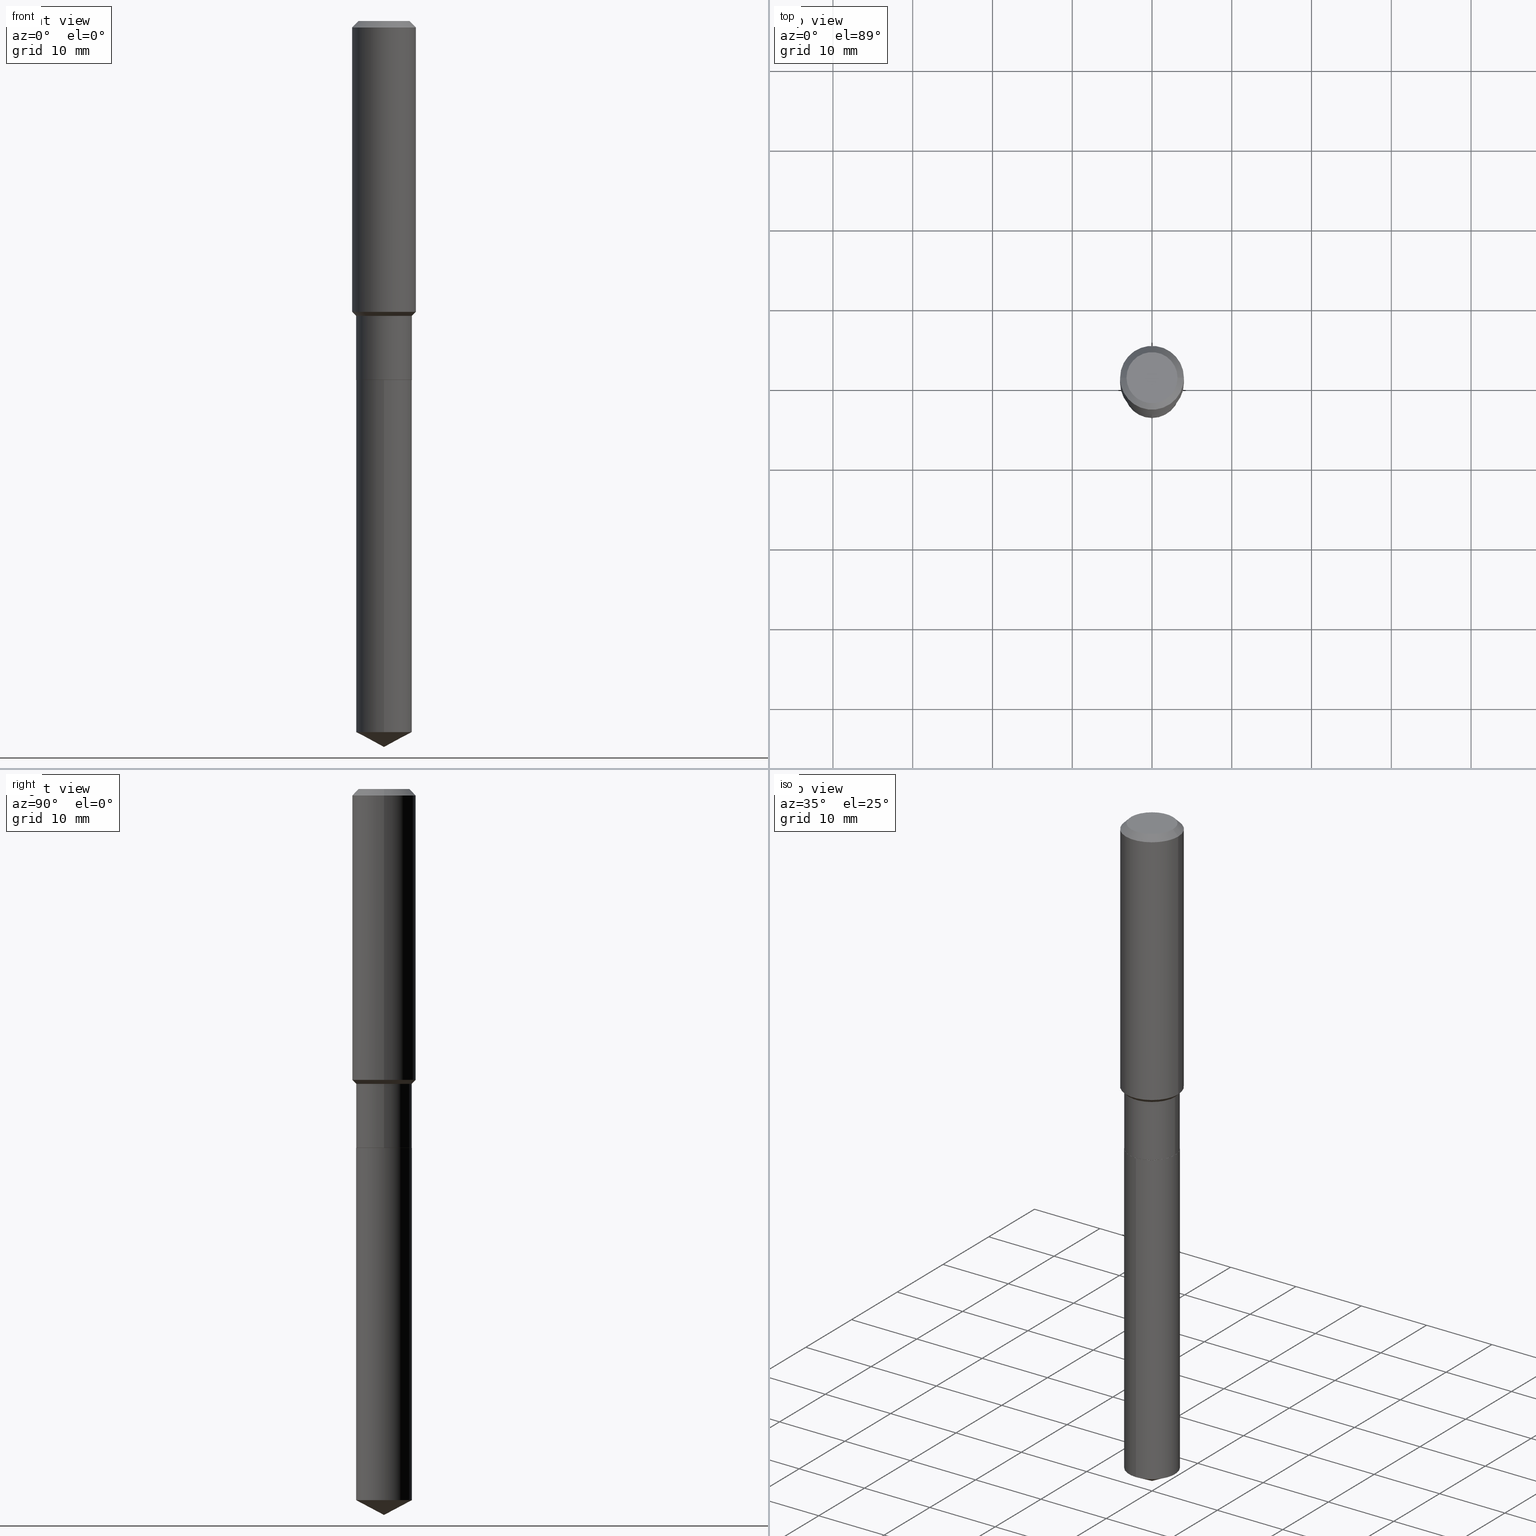
[diagram: canonical four-view strip — front | top / right | iso, engineering-drawing reading convention]
A machine part, canonical four-view strip (front | top / right | iso — engineering-drawing reading convention). The complete STEP part file that produces these views, byte-faithful:
ISO-10303-21;
HEADER;
FILE_DESCRIPTION (( 'STEP AP203' ),
    '1' );
FILE_NAME ('64840.STEP',
    '2024-04-24T19:09:38',
    ( '' ),
    ( '' ),
    'SwSTEP 2.0',
    'SolidWorks 2023',
    '' );
FILE_SCHEMA (( 'CONFIG_CONTROL_DESIGN' ));
ENDSEC;

DATA;
#1 = CONICAL_SURFACE ( 'NONE', #111, 0.1377999999999999781, 0.7853981633974513876 ) ;
#2 = ORIENTED_EDGE ( 'NONE', *, *, #119, .T. ) ;
#3 = CARTESIAN_POINT ( 'NONE',  ( -0.1260000000000000009, 9.348441284752484904E-16, 3.860086710906114178E-18 ) ) ;
#4 = CARTESIAN_POINT ( 'NONE',  ( -9.622522569850814911E-16, -0.1378000000000122460, -3.509430440317047761 ) ) ;
#5 = DESIGN_CONTEXT ( 'detailed design', #169, 'design' ) ;
#6 = VERTEX_POINT ( 'NONE', #266 ) ;
#7 = PRODUCT_RELATED_PRODUCT_CATEGORY ( 'detail', '', ( #329 ) ) ;
#8 = CARTESIAN_POINT ( 'NONE',  ( 4.332637083918206427E-29, -6.185857488028401081E-15, -1.771700000000000053 ) ) ;
#9 = AXIS2_PLACEMENT_3D ( 'NONE', #42, #201, #468 ) ;
#10 = ORIENTED_EDGE ( 'NONE', *, *, #166, .T. ) ;
#11 = VERTEX_POINT ( 'NONE', #379 ) ;
#12 = FACE_OUTER_BOUND ( 'NONE', #131, .T. ) ;
#13 = ADVANCED_FACE ( 'NONE', ( #479 ), #415, .T. ) ;
#14 = VERTEX_POINT ( 'NONE', #193 ) ;
#15 = DIRECTION ( 'NONE',  ( -2.445468806185136597E-29, 3.491481338843145583E-15, 1.000000000000000000 ) ) ;
#16 = DIRECTION ( 'NONE',  ( -6.982962677686265922E-15, -1.000000000000000000, 3.964946289788480896E-15 ) ) ;
#17 = CC_DESIGN_PERSON_AND_ORGANIZATION_ASSIGNMENT ( #155, #267, ( #168 ) ) ;
#18 = ORIENTED_EDGE ( 'NONE', *, *, #245, .F. ) ;
#19 = AXIS2_PLACEMENT_3D ( 'NONE', #202, #86, #363 ) ;
#20 = CARTESIAN_POINT ( 'NONE',  ( -9.622522569851242868E-16, -0.1378000000000061953, -1.771699999999999831 ) ) ;
#21 = VECTOR ( 'NONE', #61, 39.37007874015748143 ) ;
#22 = CARTESIAN_POINT ( 'NONE',  ( -0.1377999999999999781, -4.652631509676577044E-15, -1.454800000000000093 ) ) ;
#23 = CARTESIAN_POINT ( 'NONE',  ( 4.332637083918206987E-29, -6.185857488028401870E-15, -1.771700000000000497 ) ) ;
#24 = PERSON_AND_ORGANIZATION_ROLE ( 'creator' ) ;
#25 = FACE_OUTER_BOUND ( 'NONE', #333, .T. ) ;
#26 = ORIENTED_EDGE ( 'NONE', *, *, #142, .T. ) ;
#27 = AXIS2_PLACEMENT_3D ( 'NONE', #97, #376, #16 ) ;
#28 = VECTOR ( 'NONE', #206, 39.37007874015748143 ) ;
#29 = LOCAL_TIME ( 15, 9, 38.00000000000000000, #477 ) ;
#30 = LENGTH_MEASURE_WITH_UNIT ( LENGTH_MEASURE( 0.02539999999999999897 ), #419 );
#31 = DIRECTION ( 'NONE',  ( 1.000000000000000000, -6.982962677686267499E-15, 0.000000000000000000 ) ) ;
#32 = DIRECTION ( 'NONE',  ( 1.000000000000000000, -6.982962677686267499E-15, 0.000000000000000000 ) ) ;
#33 = PERSON_AND_ORGANIZATION ( #224, #255 ) ;
#34 = DIRECTION ( 'NONE',  ( 0.7071067811865451302, -7.319954787623248157E-15, -0.7071067811865499042 ) ) ;
#35 = DIRECTION ( 'NONE',  ( -2.445468806185136597E-29, 3.491481338843145583E-15, 1.000000000000000000 ) ) ;
#36 = AXIS2_PLACEMENT_3D ( 'NONE', #127, #175, #246 ) ;
#37 = COORDINATED_UNIVERSAL_TIME_OFFSET ( 5, 0, .BEHIND. ) ;
#38 = CARTESIAN_POINT ( 'NONE',  ( 0.000000000000000000, 0.000000000000000000, 0.000000000000000000 ) ) ;
#39 = EDGE_CURVE ( 'NONE', #304, #218, #385, .T. ) ;
#40 = CARTESIAN_POINT ( 'NONE',  ( 0.000000000000000000, 0.000000000000000000, 0.000000000000000000 ) ) ;
#41 = CYLINDRICAL_SURFACE ( 'NONE', #196, 0.1575000000000000844 ) ;
#42 = CARTESIAN_POINT ( 'NONE',  ( 7.703226739483228723E-31, -1.099816621735597661E-16, -0.03150000000000019451 ) ) ;
#43 = AXIS2_PLACEMENT_3D ( 'NONE', #72, #146, #413 ) ;
#44 = DIRECTION ( 'NONE',  ( -2.445468806185136597E-29, 3.491481338843145583E-15, 1.000000000000000000 ) ) ;
#45 = LINE ( 'NONE', #292, #52 ) ;
#46 = ORIENTED_EDGE ( 'NONE', *, *, #456, .F. ) ;
#47 = APPROVAL_STATUS ( 'not_yet_approved' ) ;
#48 = CARTESIAN_POINT ( 'NONE',  ( -0.1575000000000000011, -1.441198456951520308E-15, -0.03150000000000019451 ) ) ;
#49 = DIRECTION ( 'NONE',  ( -2.445468806185136597E-29, 3.491481338843145583E-15, 1.000000000000000000 ) ) ;
#50 = ADVANCED_FACE ( 'NONE', ( #411 ), #220, .T. ) ;
#51 = ORIENTED_EDGE ( 'NONE', *, *, #142, .F. ) ;
#52 = VECTOR ( 'NONE', #209, 39.37007874015748143 ) ;
#53 = CC_DESIGN_APPROVAL ( #394, ( #168 ) ) ;
#54 = ORIENTED_EDGE ( 'NONE', *, *, #325, .T. ) ;
#55 = PLANE ( 'NONE',  #360 ) ;
#56 = ORIENTED_EDGE ( 'NONE', *, *, #237, .T. ) ;
#57 = ADVANCED_FACE ( 'NONE', ( #475 ), #424, .T. ) ;
#58 = VERTEX_POINT ( 'NONE', #102 ) ;
#59 = APPROVAL ( #194, 'UNSPECIFIED' ) ;
#60 = ORIENTED_EDGE ( 'NONE', *, *, #301, .T. ) ;
#61 = DIRECTION ( 'NONE',  ( -2.445453820138579080E-29, 3.491502799714768727E-15, 1.000000000000000000 ) ) ;
#62 = ORIENTED_EDGE ( 'NONE', *, *, #432, .F. ) ;
#63 = AXIS2_PLACEMENT_3D ( 'NONE', #273, #232, #31 ) ;
#64 = DIRECTION ( 'NONE',  ( 1.000000000000000000, -6.982962677686265922E-15, 4.876281427513067258E-29 ) ) ;
#65 = DIRECTION ( 'NONE',  ( -2.445468806185136597E-29, 3.491481338843145583E-15, 1.000000000000000000 ) ) ;
#66 = PERSON_AND_ORGANIZATION ( #224, #255 ) ;
#67 = DIRECTION ( 'NONE',  ( -2.445468806185136597E-29, 3.491481338843145583E-15, 1.000000000000000000 ) ) ;
#68 = LINE ( 'NONE', #315, #230 ) ;
#69 = CARTESIAN_POINT ( 'NONE',  ( 0.1373000000000000054, -7.144618263674725551E-15, -1.771700000000000053 ) ) ;
#70 = MANIFOLD_SOLID_BREP ( 'Body-Move/Copy2[2]', #110 ) ;
#71 = ORIENTED_EDGE ( 'NONE', *, *, #356, .T. ) ;
#72 = CARTESIAN_POINT ( 'NONE',  ( 4.332637083918206427E-29, -6.185857488028401081E-15, -1.771700000000000053 ) ) ;
#73 = VECTOR ( 'NONE', #490, 39.37007874015748143 ) ;
#74 = EDGE_CURVE ( 'NONE', #11, #466, #289, .T. ) ;
#75 = DIRECTION ( 'NONE',  ( -2.445468806185136597E-29, 3.491481338843145583E-15, 1.000000000000000000 ) ) ;
#76 = CARTESIAN_POINT ( 'NONE',  ( 0.1377999999999999781, -6.041659308734175420E-15, -1.454800000000000093 ) ) ;
#77 = APPROVAL_DATE_TIME ( #80, #371 ) ;
#78 = AXIS2_PLACEMENT_3D ( 'NONE', #106, #134, #350 ) ;
#79 = CIRCLE ( 'NONE', #488, 0.1378000000000000058 ) ;
#80 = DATE_AND_TIME ( #362, #290 ) ;
#81 = AXIS2_PLACEMENT_3D ( 'NONE', #403, #400, #368 ) ;
#82 = EDGE_CURVE ( 'NONE', #331, #444, #283, .T. ) ;
#83 = CIRCLE ( 'NONE', #284, 0.1575000000000001676 ) ;
#84 = CYLINDRICAL_SURFACE ( 'NONE', #36, 0.1378000000000000058 ) ;
#85 = ORIENTED_EDGE ( 'NONE', *, *, #160, .T. ) ;
#86 = DIRECTION ( 'NONE',  ( -2.445453820138579080E-29, 3.491502799714768727E-15, 1.000000000000000000 ) ) ;
#87 = EDGE_CURVE ( 'NONE', #345, #396, #348, .T. ) ;
#88 = ORIENTED_EDGE ( 'NONE', *, *, #463, .T. ) ;
#89 = APPROVAL_ROLE ( '' ) ;
#90 = DIRECTION ( 'NONE',  ( -2.445468806185136597E-29, 3.491481338843145583E-15, 1.000000000000000000 ) ) ;
#91 = EDGE_LOOP ( 'NONE', ( #88, #461, #469, #467 ) ) ;
#92 = AXIS2_PLACEMENT_3D ( 'NONE', #378, #179, #342 ) ;
#93 = LINE ( 'NONE', #173, #28 ) ;
#94 = APPROVAL_PERSON_ORGANIZATION ( #397, #371, #89 ) ;
#95 = ORIENTED_EDGE ( 'NONE', *, *, #324, .T. ) ;
#96 = ADVANCED_FACE ( 'NONE', ( #382 ), #1, .T. ) ;
#97 = CARTESIAN_POINT ( 'NONE',  ( 8.582176627562627447E-29, -1.225314818554495483E-14, -3.509430440317048649 ) ) ;
#98 = EDGE_LOOP ( 'NONE', ( #399, #346, #46, #263 ) ) ;
#99 = DIRECTION ( 'NONE',  ( -2.438088387897960049E-29, 3.491481338843145188E-15, 1.000000000000000000 ) ) ;
#100 = APPLICATION_CONTEXT ( 'configuration controlled 3d designs of mechanical parts and assemblies' ) ;
#101 = AXIS2_PLACEMENT_3D ( 'NONE', #395, #372, #364 ) ;
#102 = CARTESIAN_POINT ( 'NONE',  ( 9.791278898775034917E-16, 0.1377999999999877101, -3.509430440317049094 ) ) ;
#103 = PERSON_AND_ORGANIZATION_ROLE ( 'design_owner' ) ;
#104 = DIRECTION ( 'NONE',  ( -2.445468806185136597E-29, 3.491481338843145583E-15, 1.000000000000000000 ) ) ;
#105 = DIRECTION ( 'NONE',  ( -1.000000000000000000, 6.982962677686265922E-15, 0.000000000000000000 ) ) ;
#106 = CARTESIAN_POINT ( 'NONE',  ( 8.582176627562627447E-29, -1.225314818554495483E-14, -3.509430440317048649 ) ) ;
#107 = EDGE_CURVE ( 'NONE', #174, #304, #476, .T. ) ;
#108 = COORDINATED_UNIVERSAL_TIME_OFFSET ( 5, 0, .BEHIND. ) ;
#109 = VERTEX_POINT ( 'NONE', #69 ) ;
#110 = CLOSED_SHELL ( 'NONE', ( #50, #187, #13, #113, #264, #269, #96, #130, #57, #291, #339, #227 ) ) ;
#111 = AXIS2_PLACEMENT_3D ( 'NONE', #271, #191, #141 ) ;
#112 = CIRCLE ( 'NONE', #9, 0.1575000000000000011 ) ;
#113 = ADVANCED_FACE ( 'NONE', ( #418 ), #120, .T. ) ;
#114 = LINE ( 'NONE', #386, #321 ) ;
#115 = ORIENTED_EDGE ( 'NONE', *, *, #107, .T. ) ;
#116 = ADVANCED_FACE ( 'NONE', ( #388 ), #354, .T. ) ;
#117 = ORIENTED_EDGE ( 'NONE', *, *, #160, .F. ) ;
#118 = DIRECTION ( 'NONE',  ( -2.445468806185136597E-29, 3.491481338843145583E-15, 1.000000000000000000 ) ) ;
#119 = EDGE_CURVE ( 'NONE', #331, #6, #489, .T. ) ;
#120 = CONICAL_SURFACE ( 'NONE', #320, 0.1377999999999999781, 0.7853981633974513876 ) ;
#121 = CIRCLE ( 'NONE', #190, 0.1377999999999999781 ) ;
#122 = CYLINDRICAL_SURFACE ( 'NONE', #163, 0.1378000000000000058 ) ;
#123 = ORIENTED_EDGE ( 'NONE', *, *, #39, .F. ) ;
#124 = ORIENTED_EDGE ( 'NONE', *, *, #383, .T. ) ;
#125 = AXIS2_PLACEMENT_3D ( 'NONE', #23, #186, #446 ) ;
#126 = CC_DESIGN_APPROVAL ( #371, ( #221 ) ) ;
#127 = CARTESIAN_POINT ( 'NONE',  ( 4.332637083918206987E-29, -6.185857488028401870E-15, -1.771700000000000497 ) ) ;
#128 = VERTEX_POINT ( 'NONE', #285 ) ;
#129 = COORDINATED_UNIVERSAL_TIME_OFFSET ( 5, 0, .BEHIND. ) ;
#130 = ADVANCED_FACE ( 'NONE', ( #236 ), #41, .T. ) ;
#131 = EDGE_LOOP ( 'NONE', ( #377, #95, #18 ) ) ;
#132 = DIRECTION ( 'NONE',  ( 1.000000000000000000, -6.982962677686269866E-15, 0.000000000000000000 ) ) ;
#133 = ORIENTED_EDGE ( 'NONE', *, *, #197, .T. ) ;
#134 = DIRECTION ( 'NONE',  ( -2.445453820138579080E-29, 3.491502799714768727E-15, 1.000000000000000000 ) ) ;
#135 = AXIS2_PLACEMENT_3D ( 'NONE', #316, #65, #312 ) ;
#136 = LOCAL_TIME ( 15, 9, 38.00000000000000000, #129 ) ;
#137 = FACE_OUTER_BOUND ( 'NONE', #366, .T. ) ;
#138 = ORIENTED_EDGE ( 'NONE', *, *, #82, .T. ) ;
#139 = CARTESIAN_POINT ( 'NONE',  ( 9.791278898775040833E-16, 0.1377999999999938441, -1.771700000000000941 ) ) ;
#140 = CARTESIAN_POINT ( 'NONE',  ( 6.794228106170702383E-29, -2.660719039102707943E-15, -1.771700000000000053 ) ) ;
#141 = DIRECTION ( 'NONE',  ( 1.000000000000000000, -6.982962677686267499E-15, 0.000000000000000000 ) ) ;
#142 = EDGE_CURVE ( 'NONE', #293, #109, #297, .T. ) ;
#143 = DIRECTION ( 'NONE',  ( 0.000000000000000000, 0.000000000000000000, 1.000000000000000000 ) ) ;
#144 = EDGE_LOOP ( 'NONE', ( #117, #51 ) ) ;
#145 = AXIS2_PLACEMENT_3D ( 'NONE', #40, #118, #358 ) ;
#146 = DIRECTION ( 'NONE',  ( -2.445468806185136597E-29, 3.491481338843145583E-15, 1.000000000000000000 ) ) ;
#147 = AXIS2_PLACEMENT_3D ( 'NONE', #140, #99, #407 ) ;
#148 = DIRECTION ( 'NONE',  ( -2.445468806185136597E-29, 3.491481338843145583E-15, 1.000000000000000000 ) ) ;
#149 = DIRECTION ( 'NONE',  ( 1.000000000000000000, -6.982962677686267499E-15, 4.876176775795936353E-29 ) ) ;
#150 = DIRECTION ( 'NONE',  ( 1.000000000000000000, 0.000000000000000000, 0.000000000000000000 ) ) ;
#151 = CARTESIAN_POINT ( 'NONE',  ( 3.557668019238137054E-29, -5.079407051749007943E-15, -1.454800000000000093 ) ) ;
#152 = ORIENTED_EDGE ( 'NONE', *, *, #197, .F. ) ;
#153 = CC_DESIGN_DATE_AND_TIME_ASSIGNMENT ( #279, #389, ( #168 ) ) ;
#154 = CARTESIAN_POINT ( 'NONE',  ( 7.703226739483228723E-31, -1.099816621735597661E-16, -0.03150000000000019451 ) ) ;
#155 = PERSON_AND_ORGANIZATION ( #224, #255 ) ;
#156 = PRODUCT_DEFINITION_FORMATION_WITH_SPECIFIED_SOURCE ( 'ANY', '', #329, .NOT_KNOWN. ) ;
#157 = ADVANCED_FACE ( 'NONE', ( #137 ), #84, .T. ) ;
#158 = APPROVAL_DATE_TIME ( #486, #59 ) ;
#159 = CARTESIAN_POINT ( 'NONE',  ( 7.703226739483228723E-31, -1.099816621735597661E-16, -0.03150000000000019451 ) ) ;
#160 = EDGE_CURVE ( 'NONE', #109, #293, #334, .T. ) ;
#161 = FACE_OUTER_BOUND ( 'NONE', #295, .T. ) ;
#162 = DIRECTION ( 'NONE',  ( -1.000000000000000000, 6.982962677686265922E-15, -4.876176775795935793E-29 ) ) ;
#163 = AXIS2_PLACEMENT_3D ( 'NONE', #164, #338, #199 ) ;
#164 = CARTESIAN_POINT ( 'NONE',  ( 0.000000000000000000, 0.000000000000000000, 0.000000000000000000 ) ) ;
#165 = ORIENTED_EDGE ( 'NONE', *, *, #87, .F. ) ;
#166 = EDGE_CURVE ( 'NONE', #109, #11, #45, .T. ) ;
#167 = PRODUCT_DEFINITION_SHAPE ( 'NONE', 'NONE',  #168 ) ;
#168 = PRODUCT_DEFINITION ( 'UNKNOWN', '', #156, #5 ) ;
#169 = APPLICATION_CONTEXT ( 'configuration controlled 3d designs of mechanical parts and assemblies' ) ;
#170 = LINE ( 'NONE', #225, #416 ) ;
#171 = ORIENTED_EDGE ( 'NONE', *, *, #245, .T. ) ;
#172 = CC_DESIGN_APPROVAL ( #59, ( #156 ) ) ;
#173 = CARTESIAN_POINT ( 'NONE',  ( 0.1575000000000000844, -1.099816621735587677E-15, 7.679978421878603638E-30 ) ) ;
#174 = VERTEX_POINT ( 'NONE', #438 ) ;
#175 = DIRECTION ( 'NONE',  ( -2.445453820138579080E-29, 3.491502799714768727E-15, 1.000000000000000000 ) ) ;
#176 = ORIENTED_EDGE ( 'NONE', *, *, #387, .F. ) ;
#177 = CARTESIAN_POINT ( 'NONE',  ( -0.1373000000000000054, -5.207633084655674062E-15, -1.771700000000000053 ) ) ;
#178 = ORIENTED_EDGE ( 'NONE', *, *, #390, .F. ) ;
#179 = DIRECTION ( 'NONE',  ( -2.445468806185136597E-29, 3.491481338843145583E-15, 1.000000000000000000 ) ) ;
#180 = ORIENTED_EDGE ( 'NONE', *, *, #390, .T. ) ;
#181 = CLOSED_SHELL ( 'NONE', ( #157, #116, #211, #422, #332 ) ) ;
#182 =( GEOMETRIC_REPRESENTATION_CONTEXT ( 3 ) GLOBAL_UNCERTAINTY_ASSIGNED_CONTEXT ( ( #257 ) ) GLOBAL_UNIT_ASSIGNED_CONTEXT ( ( #272, #483, #451 ) ) REPRESENTATION_CONTEXT ( 'NONE', 'WORKASPACE' ) );
#183 = EDGE_CURVE ( 'NONE', #14, #433, #93, .T. ) ;
#184 = CARTESIAN_POINT ( 'NONE',  ( 9.791278898774612876E-16, 0.1377999999999938163, -1.771700000000000941 ) ) ;
#185 = PLANE ( 'NONE',  #198 ) ;
#186 = DIRECTION ( 'NONE',  ( -2.445453820138579080E-29, 3.491502799714768727E-15, 1.000000000000000000 ) ) ;
#187 = ADVANCED_FACE ( 'NONE', ( #256 ), #200, .T. ) ;
#188 = APPLICATION_PROTOCOL_DEFINITION ( 'international standard', 'config_control_design', 1994, #169 ) ;
#189 = AXIS2_PLACEMENT_3D ( 'NONE', #337, #49, #132 ) ;
#190 = AXIS2_PLACEMENT_3D ( 'NONE', #151, #104, #353 ) ;
#191 = DIRECTION ( 'NONE',  ( -2.445468806185136597E-29, 3.491481338843145583E-15, 1.000000000000000000 ) ) ;
#192 = VERTEX_POINT ( 'NONE', #4 ) ;
#193 = CARTESIAN_POINT ( 'NONE',  ( 0.1575000000000001676, -6.110441491109385816E-15, -1.435100000000000042 ) ) ;
#194 = APPROVAL_STATUS ( 'not_yet_approved' ) ;
#195 = CARTESIAN_POINT ( 'NONE',  ( 3.509492283756289196E-29, -5.010624869373797547E-15, -1.435100000000000042 ) ) ;
#196 = AXIS2_PLACEMENT_3D ( 'NONE', #38, #35, #323 ) ;
#197 = EDGE_CURVE ( 'NONE', #444, #14, #170, .T. ) ;
#198 = AXIS2_PLACEMENT_3D ( 'NONE', #343, #473, #265 ) ;
#199 = DIRECTION ( 'NONE',  ( 1.000000000000000000, -6.982962677686265922E-15, 4.876176775795934672E-29 ) ) ;
#200 = CONICAL_SURFACE ( 'NONE', #101, 0.1575000000000000011, 0.7853981633974449483 ) ;
#201 = DIRECTION ( 'NONE',  ( -2.445468806185136597E-29, 3.491481338843145583E-15, 1.000000000000000000 ) ) ;
#202 = CARTESIAN_POINT ( 'NONE',  ( -8.751635550208559432E-28, 1.249517710879389100E-13, 35.78737874015747877 ) ) ;
#203 = CC_DESIGN_DATE_AND_TIME_ASSIGNMENT ( #462, #294, ( #221 ) ) ;
#204 = DIRECTION ( 'NONE',  ( 1.000000000000000000, -6.982962677686269866E-15, 0.000000000000000000 ) ) ;
#205 = SECURITY_CLASSIFICATION_LEVEL ( 'unclassified' ) ;
#206 = DIRECTION ( 'NONE',  ( -2.445468806185136877E-29, 3.491481338843145188E-15, 1.000000000000000000 ) ) ;
#207 = ORIENTED_EDGE ( 'NONE', *, *, #310, .F. ) ;
#208 = ORIENTED_EDGE ( 'NONE', *, *, #87, .T. ) ;
#209 = DIRECTION ( 'NONE',  ( 0.7071067811868251285, -2.468850131085164802E-15, 0.7071067811862699060 ) ) ;
#210 = ORIENTED_EDGE ( 'NONE', *, *, #426, .T. ) ;
#211 = ADVANCED_FACE ( 'NONE', ( #12 ), #445, .T. ) ;
#212 = AXIS2_PLACEMENT_3D ( 'NONE', #278, #67, #226 ) ;
#213 = CIRCLE ( 'NONE', #457, 0.1260000000000000009 ) ;
#214 = ORIENTED_EDGE ( 'NONE', *, *, #325, .F. ) ;
#215 = CARTESIAN_POINT ( 'NONE',  ( -4.719860820353100843E-47, 6.738710358733633822E-33, 1.930043355456229866E-18 ) ) ;
#216 = ORIENTED_EDGE ( 'NONE', *, *, #74, .F. ) ;
#217 = LINE ( 'NONE', #223, #21 ) ;
#218 = VERTEX_POINT ( 'NONE', #48 ) ;
#219 = LINE ( 'NONE', #184, #349 ) ;
#220 = CONICAL_SURFACE ( 'NONE', #43, 0.1373000000000000054, 0.7853981633978409649 ) ;
#221 = SECURITY_CLASSIFICATION ( '', '', #205 ) ;
#222 = EDGE_CURVE ( 'NONE', #396, #345, #453, .T. ) ;
#223 = CARTESIAN_POINT ( 'NONE',  ( -9.622522569851240896E-16, -0.1378000000000061676, -1.771699999999999831 ) ) ;
#224 = PERSON ( 'UNSPECIFIED', 'UNSPECIFIED', 'UNSPECIFIED', ('UNSPECIFIED'), ('UNSPECIFIED'), ('UNSPECIFIED') ) ;
#225 = CARTESIAN_POINT ( 'NONE',  ( 0.1377999999999999781, -6.041659308734175420E-15, -1.454800000000000093 ) ) ;
#226 = DIRECTION ( 'NONE',  ( 1.000000000000000000, -6.982962677686265922E-15, 4.876281427513067258E-29 ) ) ;
#227 = ADVANCED_FACE ( 'NONE', ( #287 ), #238, .T. ) ;
#228 = CARTESIAN_POINT ( 'NONE',  ( 3.557668019238137054E-29, -5.079407051749007943E-15, -1.454800000000000093 ) ) ;
#229 = DIRECTION ( 'NONE',  ( 1.000000000000000000, -6.982962677686265922E-15, 0.000000000000000000 ) ) ;
#230 = VECTOR ( 'NONE', #449, 39.37007874015748143 ) ;
#231 = ORIENTED_EDGE ( 'NONE', *, *, #82, .F. ) ;
#232 = DIRECTION ( 'NONE',  ( -2.445468806185136597E-29, 3.491481338843145583E-15, 1.000000000000000000 ) ) ;
#233 = PERSON_AND_ORGANIZATION ( #224, #255 ) ;
#234 = DIRECTION ( 'NONE',  ( 1.000000000000000000, -6.982962677686267499E-15, 0.000000000000000000 ) ) ;
#235 = EDGE_CURVE ( 'NONE', #6, #218, #68, .T. ) ;
#236 = FACE_OUTER_BOUND ( 'NONE', #401, .T. ) ;
#237 = EDGE_CURVE ( 'NONE', #192, #58, #408, .T. ) ;
#238 = CONICAL_SURFACE ( 'NONE', #309, 0.1373000000000000054, 0.7853981633978409649 ) ;
#239 = DIRECTION ( 'NONE',  ( 2.438088387897960049E-29, -3.491481338843145188E-15, -1.000000000000000000 ) ) ;
#240 = MANIFOLD_SOLID_BREP ( 'Body-Move/Copy2[1]', #181 ) ;
#241 = ORIENTED_EDGE ( 'NONE', *, *, #459, .F. ) ;
#242 = CC_DESIGN_PERSON_AND_ORGANIZATION_ASSIGNMENT ( #410, #103, ( #329 ) ) ;
#243 = CALENDAR_DATE ( 2024, 24, 4 ) ;
#244 = AXIS2_PLACEMENT_3D ( 'NONE', #159, #148, #229 ) ;
#245 = EDGE_CURVE ( 'NONE', #58, #192, #253, .T. ) ;
#246 = DIRECTION ( 'NONE',  ( -6.982962677686265922E-15, -1.000000000000000000, 3.964946289788480896E-15 ) ) ;
#247 = EDGE_LOOP ( 'NONE', ( #427, #138, #133, #178 ) ) ;
#248 = ORIENTED_EDGE ( 'NONE', *, *, #356, .F. ) ;
#249 = SHAPE_DEFINITION_REPRESENTATION ( #167, #252 ) ;
#250 = ORIENTED_EDGE ( 'NONE', *, *, #383, .F. ) ;
#251 = CYLINDRICAL_SURFACE ( 'NONE', #145, 0.1378000000000000058 ) ;
#252 = ADVANCED_BREP_SHAPE_REPRESENTATION ( '64840', ( #240, #70, #361 ), #182 ) ;
#253 = CIRCLE ( 'NONE', #27, 0.1378000000000000058 ) ;
#254 = AXIS2_PLACEMENT_3D ( 'NONE', #344, #351, #149 ) ;
#255 = ORGANIZATION ( 'UNSPECIFIED', 'UNSPECIFIED', '' ) ;
#256 = FACE_OUTER_BOUND ( 'NONE', #406, .T. ) ;
#257 = UNCERTAINTY_MEASURE_WITH_UNIT (LENGTH_MEASURE( 1.000000000000000082E-05 ), #272, 'distance_accuracy_value', 'NONE');
#258 = ORIENTED_EDGE ( 'NONE', *, *, #310, .T. ) ;
#259 = LINE ( 'NONE', #405, #409 ) ;
#260 = FACE_OUTER_BOUND ( 'NONE', #98, .T. ) ;
#261 = ORIENTED_EDGE ( 'NONE', *, *, #426, .F. ) ;
#262 = FACE_OUTER_BOUND ( 'NONE', #144, .T. ) ;
#263 = ORIENTED_EDGE ( 'NONE', *, *, #282, .F. ) ;
#264 = ADVANCED_FACE ( 'NONE', ( #260 ), #251, .T. ) ;
#265 = DIRECTION ( 'NONE',  ( 6.982962677686265922E-15, 1.000000000000000000, -3.491502799714768727E-15 ) ) ;
#266 = CARTESIAN_POINT ( 'NONE',  ( -0.1575000000000001676, -3.891520060551639155E-15, -1.435100000000000042 ) ) ;
#267 = PERSON_AND_ORGANIZATION_ROLE ( 'creator' ) ;
#268 = VECTOR ( 'NONE', #391, 39.37007874015748143 ) ;
#269 = ADVANCED_FACE ( 'NONE', ( #330 ), #122, .T. ) ;
#270 = APPROVAL_STATUS ( 'not_yet_approved' ) ;
#271 = CARTESIAN_POINT ( 'NONE',  ( 3.557668019238137054E-29, -5.079407051749007943E-15, -1.454800000000000093 ) ) ;
#272 =( CONVERSION_BASED_UNIT ( 'INCH', #30 ) LENGTH_UNIT ( ) NAMED_UNIT ( #373 ) );
#273 = CARTESIAN_POINT ( 'NONE',  ( 3.557668019238137054E-29, -5.079407051749007943E-15, -1.454800000000000093 ) ) ;
#274 = DATE_AND_TIME ( #482, #355 ) ;
#275 = DIRECTION ( 'NONE',  ( -2.445468806185136597E-29, 3.491481338843145583E-15, 1.000000000000000000 ) ) ;
#276 = ORIENTED_EDGE ( 'NONE', *, *, #39, .T. ) ;
#277 = AXIS2_PLACEMENT_3D ( 'NONE', #303, #484, #280 ) ;
#278 = CARTESIAN_POINT ( 'NONE',  ( -9.439721640706201686E-47, 1.347742071746726764E-32, 3.860086710912459732E-18 ) ) ;
#279 = DATE_AND_TIME ( #412, #29 ) ;
#280 = DIRECTION ( 'NONE',  ( -6.982962677686266711E-15, -1.000000000000000000, 3.541896320645566785E-15 ) ) ;
#281 = DIRECTION ( 'NONE',  ( -0.7071067811868251285, 7.493145998871357591E-15, 0.7071067811862699060 ) ) ;
#282 = EDGE_CURVE ( 'NONE', #11, #444, #328, .T. ) ;
#283 = CIRCLE ( 'NONE', #63, 0.1377999999999999781 ) ;
#284 = AXIS2_PLACEMENT_3D ( 'NONE', #195, #275, #32 ) ;
#285 = CARTESIAN_POINT ( 'NONE',  ( 8.761327401410487024E-29, -1.250900708053810159E-14, -3.582699999999999996 ) ) ;
#286 = CARTESIAN_POINT ( 'NONE',  ( 0.1378000000000000058, -9.622522569851674770E-16, 6.719371597046798536E-30 ) ) ;
#287 = FACE_OUTER_BOUND ( 'NONE', #439, .T. ) ;
#288 = ORIENTED_EDGE ( 'NONE', *, *, #183, .T. ) ;
#289 = CIRCLE ( 'NONE', #135, 0.1378000000000000058 ) ;
#290 = LOCAL_TIME ( 15, 9, 38.00000000000000000, #37 ) ;
#291 = ADVANCED_FACE ( 'NONE', ( #161 ), #55, .F. ) ;
#292 = CARTESIAN_POINT ( 'NONE',  ( 0.1373000000000000054, -7.144618263674725551E-15, -1.771700000000000053 ) ) ;
#293 = VERTEX_POINT ( 'NONE', #177 ) ;
#294 = DATE_TIME_ROLE ( 'classification_date' ) ;
#295 = EDGE_LOOP ( 'NONE', ( #374, #115 ) ) ;
#296 = CARTESIAN_POINT ( 'NONE',  ( 8.761327401410487024E-29, -1.250900708053810159E-14, -3.582699999999999996 ) ) ;
#297 = CIRCLE ( 'NONE', #393, 0.1373000000000000054 ) ;
#298 = CARTESIAN_POINT ( 'NONE',  ( 8.761380968605834770E-29, -1.250893103608559342E-14, -3.582699999999999996 ) ) ;
#299 = ORIENTED_EDGE ( 'NONE', *, *, #414, .T. ) ;
#300 = FACE_OUTER_BOUND ( 'NONE', #420, .T. ) ;
#301 = EDGE_CURVE ( 'NONE', #433, #218, #112, .T. ) ;
#302 = LINE ( 'NONE', #298, #425 ) ;
#303 = CARTESIAN_POINT ( 'NONE',  ( -8.751635550208559432E-28, 1.249517710879389100E-13, 35.78737874015747877 ) ) ;
#304 = VERTEX_POINT ( 'NONE', #3 ) ;
#305 = ORIENTED_EDGE ( 'NONE', *, *, #222, .F. ) ;
#306 = PLANE ( 'NONE',  #147 ) ;
#307 = VECTOR ( 'NONE', #481, 39.37007874015748143 ) ;
#308 = MECHANICAL_CONTEXT ( 'NONE', #100, 'mechanical' ) ;
#309 = AXIS2_PLACEMENT_3D ( 'NONE', #464, #44, #442 ) ;
#310 = EDGE_CURVE ( 'NONE', #466, #11, #79, .T. ) ;
#311 = CIRCLE ( 'NONE', #92, 0.1575000000000001676 ) ;
#312 = DIRECTION ( 'NONE',  ( 1.000000000000000000, -6.982962677686265922E-15, 0.000000000000000000 ) ) ;
#313 = APPROVAL_ROLE ( '' ) ;
#314 = LINE ( 'NONE', #455, #417 ) ;
#315 = CARTESIAN_POINT ( 'NONE',  ( -0.1575000000000000844, 1.119104808822158392E-15, -7.747322767151481189E-30 ) ) ;
#316 = CARTESIAN_POINT ( 'NONE',  ( 4.331414349515115307E-29, -6.184111747358981944E-15, -1.771200000000000552 ) ) ;
#317 = APPLICATION_PROTOCOL_DEFINITION ( 'international standard', 'config_control_design', 1994, #100 ) ;
#318 = ORIENTED_EDGE ( 'NONE', *, *, #235, .F. ) ;
#319 = DIRECTION ( 'NONE',  ( 2.445468806185136597E-29, -3.491481338843145583E-15, -1.000000000000000000 ) ) ;
#320 = AXIS2_PLACEMENT_3D ( 'NONE', #228, #75, #234 ) ;
#321 = VECTOR ( 'NONE', #34, 39.37007874015748143 ) ;
#322 = CARTESIAN_POINT ( 'NONE',  ( -0.1378000000000000336, -4.652631509676577044E-15, -1.771200000000000552 ) ) ;
#323 = DIRECTION ( 'NONE',  ( 1.000000000000000000, -6.982962677686267499E-15, 4.876176775795936353E-29 ) ) ;
#324 = EDGE_CURVE ( 'NONE', #128, #192, #370, .T. ) ;
#325 = EDGE_CURVE ( 'NONE', #293, #466, #259, .T. ) ;
#326 = CC_DESIGN_SECURITY_CLASSIFICATION ( #221, ( #156 ) ) ;
#327 = APPROVAL_PERSON_ORGANIZATION ( #33, #59, #313 ) ;
#328 = LINE ( 'NONE', #286, #73 ) ;
#329 = PRODUCT ( '64840', '64840', '', ( #308 ) ) ;
#330 = FACE_OUTER_BOUND ( 'NONE', #436, .T. ) ;
#331 = VERTEX_POINT ( 'NONE', #22 ) ;
#332 = ADVANCED_FACE ( 'NONE', ( #300 ), #185, .F. ) ;
#333 = EDGE_LOOP ( 'NONE', ( #250, #171, #71, #305 ) ) ;
#334 = CIRCLE ( 'NONE', #189, 0.1373000000000000054 ) ;
#335 = ORIENTED_EDGE ( 'NONE', *, *, #282, .T. ) ;
#336 = CYLINDRICAL_SURFACE ( 'NONE', #470, 0.1378000000000000058 ) ;
#337 = CARTESIAN_POINT ( 'NONE',  ( 4.332637083918206427E-29, -6.185857488028401081E-15, -1.771700000000000053 ) ) ;
#338 = DIRECTION ( 'NONE',  ( -2.445468806185136597E-29, 3.491481338843145583E-15, 1.000000000000000000 ) ) ;
#339 = ADVANCED_FACE ( 'NONE', ( #262 ), #306, .F. ) ;
#340 = EDGE_LOOP ( 'NONE', ( #404, #2, #452, #152 ) ) ;
#341 = LOCAL_TIME ( 15, 9, 38.00000000000000000, #352 ) ;
#342 = DIRECTION ( 'NONE',  ( 1.000000000000000000, -6.982962677686267499E-15, 0.000000000000000000 ) ) ;
#343 = CARTESIAN_POINT ( 'NONE',  ( 4.332637083918206987E-29, -6.185857488028401870E-15, -1.771700000000000497 ) ) ;
#344 = CARTESIAN_POINT ( 'NONE',  ( 0.000000000000000000, 0.000000000000000000, 0.000000000000000000 ) ) ;
#345 = VERTEX_POINT ( 'NONE', #20 ) ;
#346 = ORIENTED_EDGE ( 'NONE', *, *, #432, .T. ) ;
#347 = APPROVAL_DATE_TIME ( #274, #394 ) ;
#348 = CIRCLE ( 'NONE', #125, 0.1378000000000000058 ) ;
#349 = VECTOR ( 'NONE', #443, 39.37007874015748143 ) ;
#350 = DIRECTION ( 'NONE',  ( -6.982962677686265922E-15, -1.000000000000000000, 3.964946289788480896E-15 ) ) ;
#351 = DIRECTION ( 'NONE',  ( -2.445468806185136597E-29, 3.491481338843145583E-15, 1.000000000000000000 ) ) ;
#352 = COORDINATED_UNIVERSAL_TIME_OFFSET ( 5, 0, .BEHIND. ) ;
#353 = DIRECTION ( 'NONE',  ( 1.000000000000000000, -6.982962677686267499E-15, 0.000000000000000000 ) ) ;
#354 = CONICAL_SURFACE ( 'NONE', #277, 74.04434902938341168, 1.082104136236485825 ) ;
#355 = LOCAL_TIME ( 15, 9, 38.00000000000000000, #108 ) ;
#356 = EDGE_CURVE ( 'NONE', #192, #345, #217, .T. ) ;
#357 = DIRECTION ( 'NONE',  ( -2.445468806185136597E-29, 3.491481338843145583E-15, 1.000000000000000000 ) ) ;
#358 = DIRECTION ( 'NONE',  ( 1.000000000000000000, -6.982962677686265922E-15, 4.876176775795934672E-29 ) ) ;
#359 = ORIENTED_EDGE ( 'NONE', *, *, #324, .F. ) ;
#360 = AXIS2_PLACEMENT_3D ( 'NONE', #215, #239, #162 ) ;
#361 = AXIS2_PLACEMENT_3D ( 'NONE', #474, #143, #150 ) ;
#362 = CALENDAR_DATE ( 2024, 24, 4 ) ;
#363 = DIRECTION ( 'NONE',  ( -6.982962677686266711E-15, -1.000000000000000000, 3.541896320645566785E-15 ) ) ;
#364 = DIRECTION ( 'NONE',  ( -1.000000000000000000, 6.982962677686265922E-15, 0.000000000000000000 ) ) ;
#365 = PERSON_AND_ORGANIZATION ( #224, #255 ) ;
#366 = EDGE_LOOP ( 'NONE', ( #56, #124, #165, #248 ) ) ;
#367 = VECTOR ( 'NONE', #440, 39.37007874015748143 ) ;
#368 = DIRECTION ( 'NONE',  ( -6.982962677686265922E-15, -1.000000000000000000, 3.964946289788480896E-15 ) ) ;
#369 = ORIENTED_EDGE ( 'NONE', *, *, #459, .T. ) ;
#370 = LINE ( 'NONE', #296, #367 ) ;
#371 = APPROVAL ( #47, 'UNSPECIFIED' ) ;
#372 = DIRECTION ( 'NONE',  ( 2.445468806185136597E-29, -3.491481338843145583E-15, -1.000000000000000000 ) ) ;
#373 = DIMENSIONAL_EXPONENTS ( 1.000000000000000000, 0.000000000000000000, 0.000000000000000000, 0.000000000000000000, 0.000000000000000000, 0.000000000000000000, 0.000000000000000000 ) ;
#374 = ORIENTED_EDGE ( 'NONE', *, *, #387, .T. ) ;
#375 = CARTESIAN_POINT ( 'NONE',  ( -9.439721640706201686E-47, 1.347742071746726764E-32, 3.860086710912459732E-18 ) ) ;
#376 = DIRECTION ( 'NONE',  ( -2.445453820138579080E-29, 3.491502799714768727E-15, 1.000000000000000000 ) ) ;
#377 = ORIENTED_EDGE ( 'NONE', *, *, #414, .F. ) ;
#378 = CARTESIAN_POINT ( 'NONE',  ( 3.509492283756289196E-29, -5.010624869373797547E-15, -1.435100000000000042 ) ) ;
#379 = CARTESIAN_POINT ( 'NONE',  ( 0.1378000000000000058, -7.146364004344149421E-15, -1.771200000000000552 ) ) ;
#380 = DIRECTION ( 'NONE',  ( 6.273719981627762132E-15, 0.8829475928589292089, 0.4694715627858863094 ) ) ;
#381 = CC_DESIGN_PERSON_AND_ORGANIZATION_ASSIGNMENT ( #365, #434, ( #156 ) ) ;
#382 = FACE_OUTER_BOUND ( 'NONE', #247, .T. ) ;
#383 = EDGE_CURVE ( 'NONE', #58, #396, #219, .T. ) ;
#384 = DIRECTION ( 'NONE',  ( -2.445453820138579080E-29, 3.491502799714768727E-15, 1.000000000000000000 ) ) ;
#385 = LINE ( 'NONE', #471, #307 ) ;
#386 = CARTESIAN_POINT ( 'NONE',  ( 0.1575000000000000011, -1.190510096822576026E-15, -0.03150000000000019451 ) ) ;
#387 = EDGE_CURVE ( 'NONE', #304, #174, #213, .T. ) ;
#388 = FACE_OUTER_BOUND ( 'NONE', #398, .T. ) ;
#389 = DATE_TIME_ROLE ( 'creation_date' ) ;
#390 = EDGE_CURVE ( 'NONE', #6, #14, #311, .T. ) ;
#391 = DIRECTION ( 'NONE',  ( -0.7071067811865496822, 7.493145998870362049E-15, 0.7071067811865453523 ) ) ;
#392 = EDGE_LOOP ( 'NONE', ( #85, #54, #216, #441 ) ) ;
#393 = AXIS2_PLACEMENT_3D ( 'NONE', #8, #90, #204 ) ;
#394 = APPROVAL ( #270, 'UNSPECIFIED' ) ;
#395 = CARTESIAN_POINT ( 'NONE',  ( 7.703226739483228723E-31, -1.099816621735597661E-16, -0.03150000000000019451 ) ) ;
#396 = VERTEX_POINT ( 'NONE', #139 ) ;
#397 = PERSON_AND_ORGANIZATION ( #224, #255 ) ;
#398 = EDGE_LOOP ( 'NONE', ( #359, #299, #472 ) ) ;
#399 = ORIENTED_EDGE ( 'NONE', *, *, #74, .T. ) ;
#400 = DIRECTION ( 'NONE',  ( -2.445453820138579080E-29, 3.491502799714768727E-15, 1.000000000000000000 ) ) ;
#401 = EDGE_LOOP ( 'NONE', ( #318, #180, #288, #261 ) ) ;
#402 = CC_DESIGN_PERSON_AND_ORGANIZATION_ASSIGNMENT ( #421, #428, ( #221 ) ) ;
#403 = CARTESIAN_POINT ( 'NONE',  ( 4.332637083918206987E-29, -6.185857488028401870E-15, -1.771700000000000497 ) ) ;
#404 = ORIENTED_EDGE ( 'NONE', *, *, #456, .T. ) ;
#405 = CARTESIAN_POINT ( 'NONE',  ( -0.1373000000000000054, -5.210282311829783685E-15, -1.771700000000000053 ) ) ;
#406 = EDGE_LOOP ( 'NONE', ( #430, #369, #60, #123 ) ) ;
#407 = DIRECTION ( 'NONE',  ( 1.000000000000000000, -6.982962677686265922E-15, 4.876176775795935793E-29 ) ) ;
#408 = CIRCLE ( 'NONE', #78, 0.1378000000000000058 ) ;
#409 = VECTOR ( 'NONE', #281, 39.37007874015748143 ) ;
#410 = PERSON_AND_ORGANIZATION ( #224, #255 ) ;
#411 = FACE_OUTER_BOUND ( 'NONE', #392, .T. ) ;
#412 = CALENDAR_DATE ( 2024, 24, 4 ) ;
#413 = DIRECTION ( 'NONE',  ( 1.000000000000000000, -6.982962677686269866E-15, 0.000000000000000000 ) ) ;
#414 = EDGE_CURVE ( 'NONE', #128, #58, #302, .T. ) ;
#415 = CYLINDRICAL_SURFACE ( 'NONE', #254, 0.1575000000000000844 ) ;
#416 = VECTOR ( 'NONE', #431, 39.37007874015748143 ) ;
#417 = VECTOR ( 'NONE', #448, 39.37007874015748143 ) ;
#418 = FACE_OUTER_BOUND ( 'NONE', #340, .T. ) ;
#419 =( LENGTH_UNIT ( ) NAMED_UNIT ( * ) SI_UNIT ( $, .METRE. ) );
#420 = EDGE_LOOP ( 'NONE', ( #208, #465 ) ) ;
#421 = PERSON_AND_ORGANIZATION ( #224, #255 ) ;
#422 = ADVANCED_FACE ( 'NONE', ( #25 ), #336, .T. ) ;
#423 = CARTESIAN_POINT ( 'NONE',  ( 4.331414349515115307E-29, -6.184111747358981944E-15, -1.771200000000000552 ) ) ;
#424 = CONICAL_SURFACE ( 'NONE', #485, 0.1575000000000000011, 0.7853981633974449483 ) ;
#425 = VECTOR ( 'NONE', #380, 39.37007874015748854 ) ;
#426 = EDGE_CURVE ( 'NONE', #218, #433, #454, .T. ) ;
#427 = ORIENTED_EDGE ( 'NONE', *, *, #119, .F. ) ;
#428 = PERSON_AND_ORGANIZATION_ROLE ( 'classification_officer' ) ;
#429 = APPROVAL_PERSON_ORGANIZATION ( #233, #394, #450 ) ;
#430 = ORIENTED_EDGE ( 'NONE', *, *, #107, .F. ) ;
#431 = DIRECTION ( 'NONE',  ( 0.7071067811865496822, -2.468850131082279149E-15, 0.7071067811865453523 ) ) ;
#432 = EDGE_CURVE ( 'NONE', #466, #331, #314, .T. ) ;
#433 = VERTEX_POINT ( 'NONE', #487 ) ;
#434 = PERSON_AND_ORGANIZATION_ROLE ( 'design_supplier' ) ;
#435 = CC_DESIGN_PERSON_AND_ORGANIZATION_ASSIGNMENT ( #66, #24, ( #156 ) ) ;
#436 = EDGE_LOOP ( 'NONE', ( #62, #258, #335, #231 ) ) ;
#437 = CARTESIAN_POINT ( 'NONE',  ( 4.332637083918206987E-29, -6.185857488028401870E-15, -1.771700000000000497 ) ) ;
#438 = CARTESIAN_POINT ( 'NONE',  ( 0.1260000000000000009, -1.027466422270894443E-15, 3.860086710919128072E-18 ) ) ;
#439 = EDGE_LOOP ( 'NONE', ( #214, #26, #10, #207 ) ) ;
#440 = DIRECTION ( 'NONE',  ( -6.165590087286832085E-15, -0.8829475928589258782, 0.4694715627858925822 ) ) ;
#441 = ORIENTED_EDGE ( 'NONE', *, *, #166, .F. ) ;
#442 = DIRECTION ( 'NONE',  ( 1.000000000000000000, -6.982962677686269866E-15, 0.000000000000000000 ) ) ;
#443 = DIRECTION ( 'NONE',  ( -2.445453820138579080E-29, 3.491502799714768727E-15, 1.000000000000000000 ) ) ;
#444 = VERTEX_POINT ( 'NONE', #76 ) ;
#445 = CONICAL_SURFACE ( 'NONE', #19, 74.04434902938341168, 1.082104136236485825 ) ;
#446 = DIRECTION ( 'NONE',  ( -6.982962677686265922E-15, -1.000000000000000000, 3.964946289788480896E-15 ) ) ;
#447 = CALENDAR_DATE ( 2024, 24, 4 ) ;
#448 = DIRECTION ( 'NONE',  ( -2.445468806185136877E-29, 3.491481338843145188E-15, 1.000000000000000000 ) ) ;
#449 = DIRECTION ( 'NONE',  ( -2.445468806185136877E-29, 3.491481338843145188E-15, 1.000000000000000000 ) ) ;
#450 = APPROVAL_ROLE ( '' ) ;
#451 =( NAMED_UNIT ( * ) SI_UNIT ( $, .STERADIAN. ) SOLID_ANGLE_UNIT ( ) );
#452 = ORIENTED_EDGE ( 'NONE', *, *, #463, .F. ) ;
#453 = CIRCLE ( 'NONE', #81, 0.1378000000000000058 ) ;
#454 = CIRCLE ( 'NONE', #244, 0.1575000000000000011 ) ;
#455 = CARTESIAN_POINT ( 'NONE',  ( -0.1378000000000000058, 9.791278898774180975E-16, -6.778292554371260034E-30 ) ) ;
#456 = EDGE_CURVE ( 'NONE', #444, #331, #121, .T. ) ;
#457 = AXIS2_PLACEMENT_3D ( 'NONE', #375, #15, #64 ) ;
#458 = CARTESIAN_POINT ( 'NONE',  ( -0.1377999999999999781, -4.100279161871590437E-15, -1.454800000000000093 ) ) ;
#459 = EDGE_CURVE ( 'NONE', #174, #433, #114, .T. ) ;
#460 = DIRECTION ( 'NONE',  ( 1.000000000000000000, -6.982962677686265922E-15, 0.000000000000000000 ) ) ;
#461 = ORIENTED_EDGE ( 'NONE', *, *, #235, .T. ) ;
#462 = DATE_AND_TIME ( #243, #136 ) ;
#463 = EDGE_CURVE ( 'NONE', #14, #6, #83, .T. ) ;
#464 = CARTESIAN_POINT ( 'NONE',  ( 4.332637083918206427E-29, -6.185857488028401081E-15, -1.771700000000000053 ) ) ;
#465 = ORIENTED_EDGE ( 'NONE', *, *, #222, .T. ) ;
#466 = VERTEX_POINT ( 'NONE', #322 ) ;
#467 = ORIENTED_EDGE ( 'NONE', *, *, #183, .F. ) ;
#468 = DIRECTION ( 'NONE',  ( 1.000000000000000000, -6.982962677686265922E-15, 0.000000000000000000 ) ) ;
#469 = ORIENTED_EDGE ( 'NONE', *, *, #301, .F. ) ;
#470 = AXIS2_PLACEMENT_3D ( 'NONE', #437, #384, #478 ) ;
#471 = CARTESIAN_POINT ( 'NONE',  ( -0.1575000000000000011, 9.898349595620272334E-16, -0.03150000000000019451 ) ) ;
#472 = ORIENTED_EDGE ( 'NONE', *, *, #237, .F. ) ;
#473 = DIRECTION ( 'NONE',  ( 2.445453820138578800E-29, -3.491502799714768727E-15, -1.000000000000000000 ) ) ;
#474 = CARTESIAN_POINT ( 'NONE',  ( 0.000000000000000000, 0.000000000000000000, 0.000000000000000000 ) ) ;
#475 = FACE_OUTER_BOUND ( 'NONE', #480, .T. ) ;
#476 = CIRCLE ( 'NONE', #212, 0.1260000000000000009 ) ;
#477 = COORDINATED_UNIVERSAL_TIME_OFFSET ( 5, 0, .BEHIND. ) ;
#478 = DIRECTION ( 'NONE',  ( -6.982962677686265922E-15, -1.000000000000000000, 3.964946289788480896E-15 ) ) ;
#479 = FACE_OUTER_BOUND ( 'NONE', #91, .T. ) ;
#480 = EDGE_LOOP ( 'NONE', ( #241, #176, #276, #210 ) ) ;
#481 = DIRECTION ( 'NONE',  ( -0.7071067811865451302, 2.468850131082231817E-15, -0.7071067811865499042 ) ) ;
#482 = CALENDAR_DATE ( 2024, 24, 4 ) ;
#483 =( NAMED_UNIT ( * ) PLANE_ANGLE_UNIT ( ) SI_UNIT ( $, .RADIAN. ) );
#484 = DIRECTION ( 'NONE',  ( -2.445453820138579080E-29, 3.491502799714768727E-15, 1.000000000000000000 ) ) ;
#485 = AXIS2_PLACEMENT_3D ( 'NONE', #154, #319, #105 ) ;
#486 = DATE_AND_TIME ( #447, #341 ) ;
#487 = CARTESIAN_POINT ( 'NONE',  ( 0.1575000000000000011, -1.209798283909146741E-15, -0.03150000000000019451 ) ) ;
#488 = AXIS2_PLACEMENT_3D ( 'NONE', #423, #357, #460 ) ;
#489 = LINE ( 'NONE', #458, #268 ) ;
#490 = DIRECTION ( 'NONE',  ( -2.445468806185136877E-29, 3.491481338843145188E-15, 1.000000000000000000 ) ) ;
ENDSEC;
END-ISO-10303-21;
